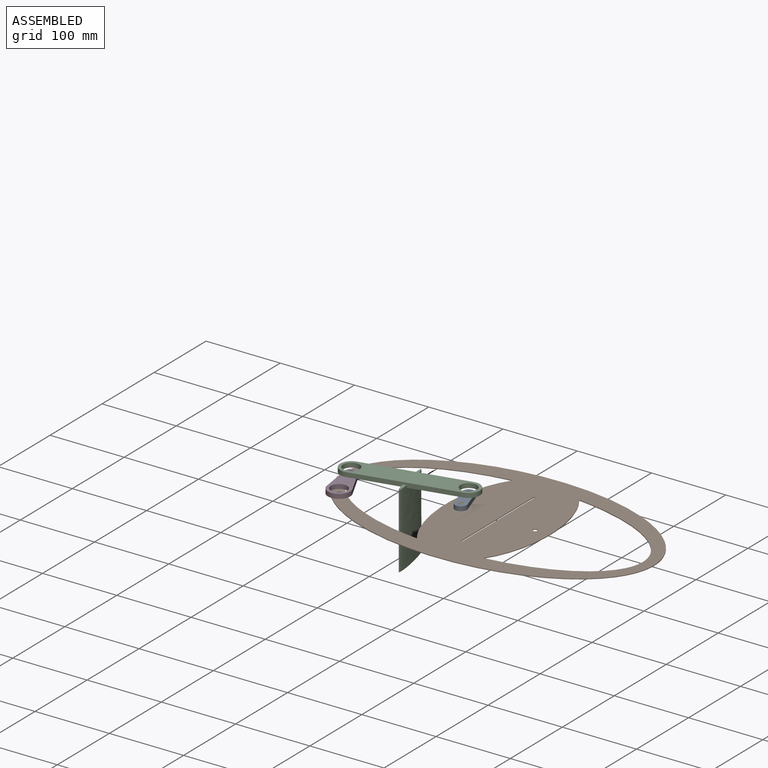
[diagram: assembled view]
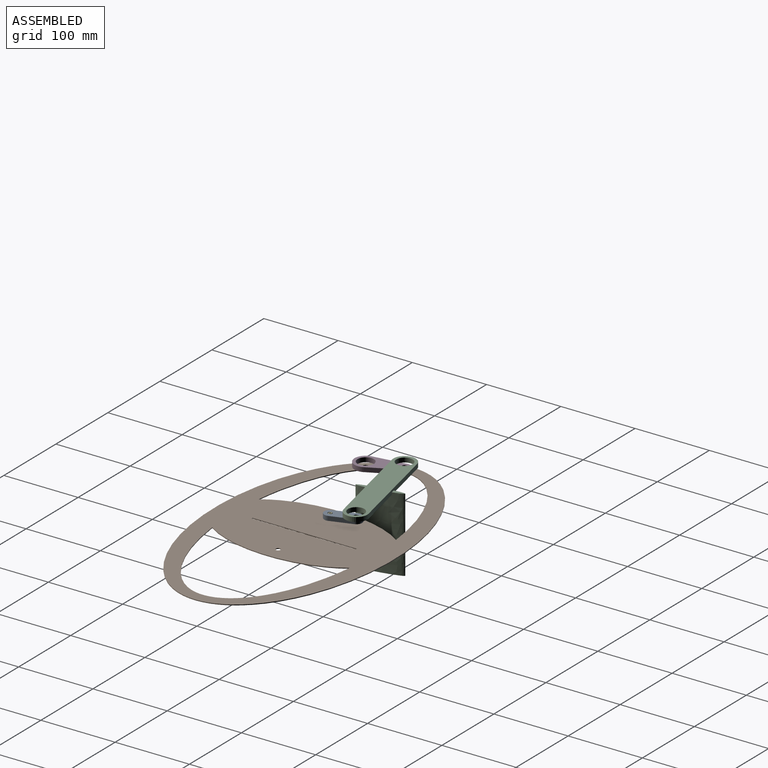
[diagram: assembled view, second angle]
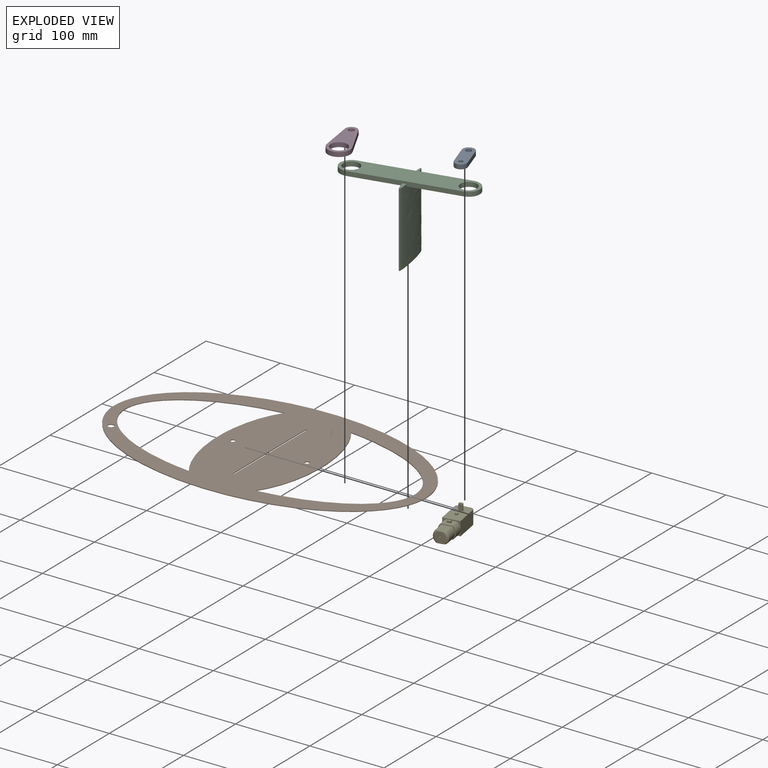
[diagram: exploded view]
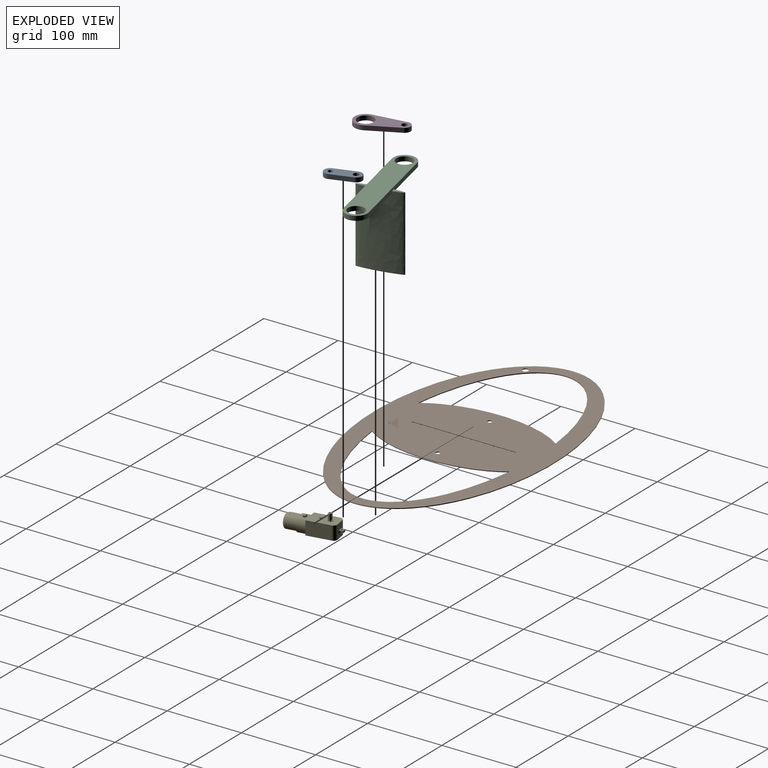
[diagram: exploded view, second angle]
ASSEMBLY  parts=5 mates=7
PART A: 8 faces, bbox 46x16x6 mm
  f0: plane 30x6mm, normal (0,1,0), area 180mm2, adj f1,f4,f6,f7
  f1: cylinder r=8mm len=16mm, axis (0,0,-1), area 150.8mm2, adj f0,f2,f6,f7
  f2: plane 30x6mm, normal (0,-1,0), area 180mm2, adj f1,f4,f6,f7
  f3: cylinder r=3mm len=6mm, axis (0,0,-1), area 113.1mm2, adj f6,f7
  f4: cylinder r=8mm len=16mm, axis (0,0,-1), area 150.8mm2, adj f0,f2,f6,f7
  f5: cylinder r=4mm len=8mm, axis (0,0,-1), area 150.8mm2, adj f6,f7
  f6: plane 46x16mm, normal (0,0,1), area 602.5mm2, adj f0,f1,f2,f3,f4,f5
  f7: plane 46x16mm, normal (0,0,-1), area 602.5mm2, adj f0,f1,f2,f3,f4,f5
PART B: 14 faces, bbox 420x240x1 mm
  f0: extruded ~184.96x150.39mm, area 379.8mm2, adj f11,f12,f13
  f1: plane 140x1mm, normal (1,0,0), area 140mm2, adj f2,f9,f12,f13
  f2: plane 2x1mm, normal (0,-1,0), area 2mm2, adj f1,f3,f12,f13
  f3: plane 140x1mm, normal (-1,0,0), area 140mm2, adj f2,f9,f12,f13
  f4: extruded ~184.96x150.39mm, area 379.8mm2, adj f10,f12,f13
  f5: extruded ~420x240mm, area 1056.1mm2, adj f12,f13
  f6: cylinder r=4mm len=8mm, axis (0,0,-1), area 25.1mm2, adj f12,f13
  f7: cylinder r=3mm len=6mm, axis (0,0,-1), area 18.8mm2, adj f12,f13
  f8: cylinder r=3mm len=6mm, axis (0,0,-1), area 18.8mm2, adj f12,f13
  f9: plane 2x1mm, normal (0,1,0), area 2mm2, adj f1,f3,f12,f13
  f10: extruded ~184.96x25.39mm, area 194.7mm2, adj f4,f12,f13
  f11: extruded ~184.96x25.39mm, area 194.7mm2, adj f0,f12,f13
  f12: plane 420x240mm, normal (0,0,1), area 43916.5mm2, adj f0,f1,f2,f3,f4,f5,f6,f7
  f13: plane 420x240mm, normal (0,0,-1), area 43916.5mm2, adj f0,f1,f2,f3,f4,f5,f6,f7
PART C: 13 faces, bbox 150.8x100.7x103 mm
  f0: plane 81.09x61.79mm, normal (0,0,-1), area 1987.2mm2, adj f1,f2,f3,f6,f10
  f1: plane 120.83x70.71mm, normal (0.51,0.86,0), area 824.4mm2, adj f0,f2,f5,f7,f8,f10,f12
  f2: cylinder r=15mm len=27.95mm, axis (0,0,-1), area 282.7mm2, adj f0,f1,f3,f7
  f3: plane 120.83x70.71mm, normal (-0.51,-0.86,0), area 824.4mm2, adj f0,f2,f5,f7,f8,f9,f10
  f4: cylinder r=11mm len=22mm, axis (0,0,-1), area 414.7mm2, adj f7,f8
  f5: cylinder r=15mm len=27.95mm, axis (0,0,-1), area 282.7mm2, adj f1,f3,f7,f8
  f6: cylinder r=11mm len=22mm, axis (0,0,-1), area 414.7mm2, adj f0,f7
  f7: plane 150.83x100.71mm, normal (0,0,1), area 4146.6mm2, adj f1,f2,f3,f4,f5,f6
  f8: plane 81.09x61.79mm, normal (0,0,-1), area 1987.2mm2, adj f1,f3,f4,f5,f10
  f9: plane 14.09x10.37mm, normal (0,0,1), area 55.2mm2, adj f3,f10
  f10: extruded ~100x50.95mm, area 12054.1mm2, adj f0,f1,f3,f8,f9,f11,f12
  f11: plane 51.05x32.1mm, normal (0,0,-1), area 282.7mm2, adj f10
  f12: plane 14.09x10.37mm, normal (0,0,1), area 55.2mm2, adj f1,f10
PART D: 8 faces, bbox 30x68x6 mm
  f0: plane 43.91x6.91mm, normal (-0.99,0.16,0), area 266.7mm2, adj f1,f4,f6,f7
  f1: cylinder r=15mm len=30mm, axis (0,0,-1), area 310.9mm2, adj f0,f2,f6,f7
  f2: plane 43.91x6.91mm, normal (0.99,0.16,0), area 266.7mm2, adj f1,f4,f6,f7
  f3: cylinder r=11mm len=22mm, axis (0,0,-1), area 414.7mm2, adj f6,f7
  f4: cylinder r=8mm len=15.81mm, axis (0,0,-1), area 135.8mm2, adj f0,f2,f6,f7
  f5: cylinder r=4mm len=8mm, axis (0,0,-1), area 150.8mm2, adj f6,f7
  f6: plane 68x30mm, normal (0,0,1), area 1071.1mm2, adj f0,f1,f2,f3,f4,f5
  f7: plane 68x30mm, normal (0,0,-1), area 1071.1mm2, adj f0,f1,f2,f3,f4,f5
PART E: 51 faces, bbox 22.5x30x73 mm
  f0: plane 7.2x7.2mm, normal (0,-1,0), area 20.8mm2, adj f23,f24,f25,f26,f27
  f1: cylinder r=11.25mm len=17mm, axis (0,0,1), area 231.3mm2, adj f2,f4,f7,f13,f21
  f2: plane 22.5x17mm, normal (0,0,1), area 73.3mm2, adj f1,f3,f13,f14,f15,f20,f21,f22
  f3: cylinder r=10mm len=15mm, axis (0,0,1), area 237.5mm2, adj f2,f16,f20,f22
  f4: plane 8.5x3.88mm, normal (0,0,1), area 10.1mm2, adj f1,f8,f13
  f5: plane 8.5x3.88mm, normal (0,0,1), area 10.1mm2, adj f6,f13,f14
  f6: plane 32x18.5mm, normal (1,0,0), area 592mm2, adj f5,f7,f11,f12,f13
  f7: plane 22.5x10mm, normal (0,0,1), area 54mm2, adj f1,f6,f8,f12,f14,f21
  f8: plane 32x18.5mm, normal (-1,0,0), area 592mm2, adj f4,f7,f9,f12,f13
  f9: cylinder r=5mm len=18.5mm, axis (0,1,0), area 145.3mm2, adj f8,f10,f12,f13
  f10: plane 18.5x12.5mm, normal (0,0,-1), area 201.3mm2, adj f9,f11,f12,f13,f37,f38,f39,f40
  f11: cylinder r=5mm len=18.5mm, axis (0,1,0), area 145.3mm2, adj f6,f10,f12,f13
  f12: plane 37x22.5mm, normal (0,-1,0), area 768.5mm2, adj f6,f7,f8,f9,f10,f11,f23,f31
  f13: plane 49x22.5mm, normal (0,1,0), area 983.6mm2, adj f1,f2,f4,f5,f6,f8,f9,f10
  f14: cylinder r=11.25mm len=17mm, axis (0,0,1), area 231.3mm2, adj f2,f5,f7,f13,f21
  f15: cylinder r=10mm len=15mm, axis (0,0,1), area 237.5mm2, adj f2,f16,f20,f22
  f16: torus R=7mm, axis (0,0,1), area 174mm2, adj f3,f15,f17,f20,f22
  f17: plane 14x14mm, normal (0,0,1), area 150.8mm2, adj f16,f18
  f18: cylinder r=1mm len=2mm, axis (0,0,1), area 12.6mm2, adj f17,f19
  f19: plane 2x2mm, normal (0,0,1), area 3.1mm2, adj f18
  f20: plane 16.96x13.24mm, normal (0,1,0), area 218mm2, adj f2,f3,f15,f16
  f21: plane 14.74x12mm, normal (0,-1,0), area 161.9mm2, adj f1,f2,f7,f14,f42,f43,f44,f45
  f22: plane 16.96x13.24mm, normal (0,-1,0), area 218mm2, adj f2,f3,f15,f16
  f23: cylinder r=3.6mm len=7.2mm, axis (0,1,0), area 11.3mm2, adj f0,f12
  f24: plane 8.5x3.78mm, normal (0,0,1), area 32.1mm2, adj f0,f25,f27,f29
  f25: cylinder r=2.75mm len=8.5mm, axis (0,1,0), area 38.1mm2, adj f0,f24,f26,f29
  f26: plane 8.5x3.78mm, normal (0,0,-1), area 32.1mm2, adj f0,f25,f27,f29
  f27: cylinder r=2.75mm len=8.5mm, axis (0,1,0), area 38.1mm2, adj f0,f24,f26,f29
  f28: cylinder r=1mm len=8.5mm, axis (0,1,0), area 53.4mm2, adj f29,f30
  f29: plane 5.5x4mm, normal (0,-1,0), area 16.7mm2, adj f24,f25,f26,f27,f28
  f30: plane 2x2mm, normal (0,-1,0), area 3.1mm2, adj f28
  f31: cylinder r=2mm len=4mm, axis (0,1,0), area 25.1mm2, adj f12,f32
  f32: plane 4x4mm, normal (0,-1,0), area 12.6mm2, adj f31
  f33: plane 3x3mm, normal (-1,0,0), area 9mm2, adj f34,f37,f38,f40
  f34: plane 6x3mm, normal (0,0,-1), area 18mm2, adj f33,f35,f37,f38
  f35: plane 3x3mm, normal (1,0,0), area 9mm2, adj f34,f37,f38,f39
  f36: cylinder r=1.25mm len=3mm, axis (0,1,0), area 23.6mm2, adj f37,f38
  f37: plane 10x5mm, normal (0,-1,0), area 26.8mm2, adj f10,f33,f34,f35,f36,f39,f40
  f38: plane 10x5mm, normal (0,1,0), area 26.8mm2, adj f10,f33,f34,f35,f36,f39,f40
  f39: cylinder r=2mm len=3mm, axis (0,-1,0), area 9.4mm2, adj f10,f35,f37,f38
  f40: cylinder r=2mm len=3mm, axis (0,1,0), area 9.4mm2, adj f10,f33,f37,f38
  f41: plane 5x3mm, normal (0,-1,0), area 15mm2, adj f42,f43,f44,f45
  f42: plane 3x2.5mm, normal (1,0,0), area 7.5mm2, adj f21,f41,f44,f45
  f43: plane 3x2.5mm, normal (-1,0,0), area 7.5mm2, adj f21,f41,f44,f45
  f44: plane 5x2.5mm, normal (0,0,-1), area 12.5mm2, adj f21,f41,f42,f43
  f45: plane 5x2.5mm, normal (0,0,1), area 12.5mm2, adj f21,f41,f42,f43
  f46: plane 5x2.5mm, normal (0,0,1), area 12.5mm2, adj f13,f48,f49,f50
  f47: plane 5x2.5mm, normal (0,0,-1), area 12.5mm2, adj f13,f48,f49,f50
  f48: plane 3x2.5mm, normal (1,0,0), area 7.5mm2, adj f13,f46,f47,f50
  f49: plane 3x2.5mm, normal (-1,0,0), area 7.5mm2, adj f13,f46,f47,f50
  f50: plane 5x3mm, normal (0,1,0), area 15mm2, adj f46,f47,f48,f49
PLACE A rot(axis=(0,0,-1),71.7deg) t=(-94.8,-16.8,7.28)mm
PLACE B t=(-44.8,-16.8,3.78)mm fixed
PLACE C rot(axis=(0,0,1),42.9deg) t=(-110.79,40.95,13.28)mm
PLACE D rot(axis=(0,0,1),17.5deg) t=(-227.37,-61.8,7.28)mm
PLACE E rot(axis=(-0.06,0.71,-0.71),172.9deg) t=(-94.8,-16.8,-8.72)mm
MATE cylindrical E.f27 <-> B.f8  axis (0,0,-1) through (-94.8,-16.8,6.03)mm
MATE revolute A.f5 <-> C.f4  axis (0,0,1) through (-104.25,11.67,10.28)mm
MATE cylindrical D.f5 <-> C.f2  axis (0,0,-1) through (-240.87,-18.87,7.28)mm
MATE cylindrical D.f3 <-> B.f6  axis (0,0,-1) through (-227.37,-61.8,10.28)mm
MATE revolute A.f4 <-> E.f25  axis (0,0,1) through (-94.8,-16.8,10.28)mm
MATE planar E.f31 <-> B.f13  axis (0,0,1) through (-92.89,-27.63,3.28)mm
MATE planar D.f7 <-> B.f12  axis (0,0,-1) through (-245.5,-42.04,4.28)mm
